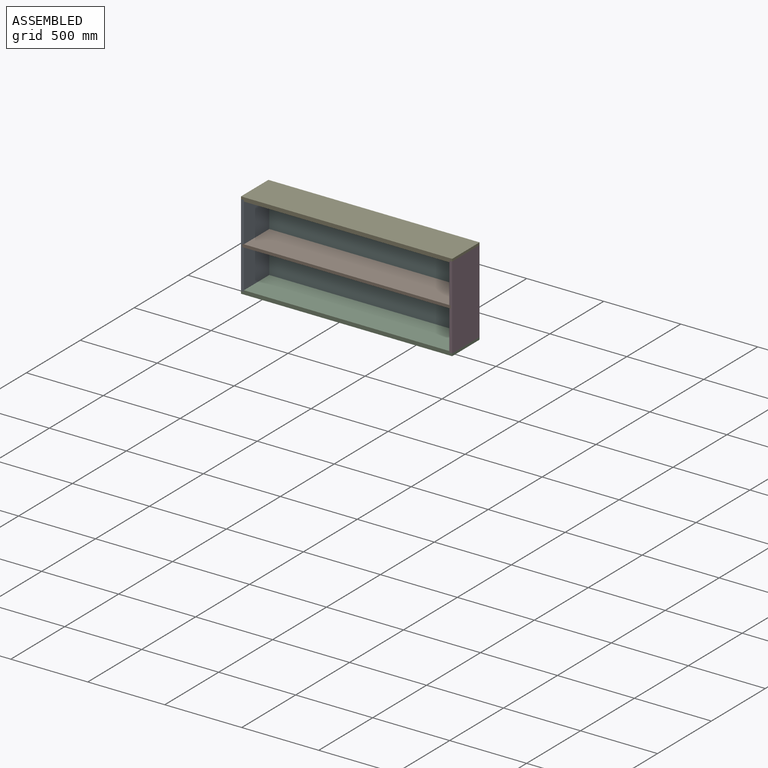
[diagram: assembled view]
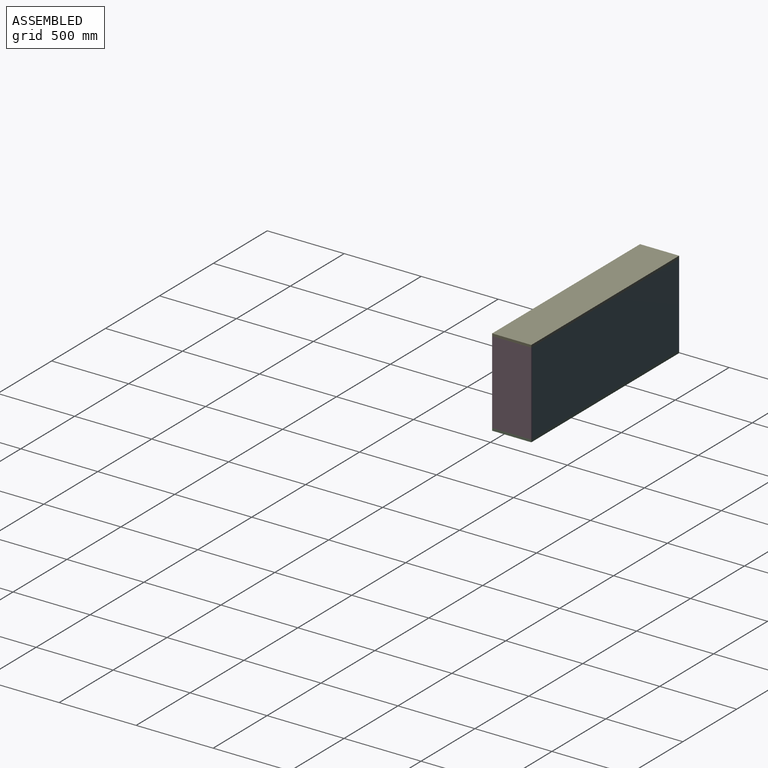
[diagram: assembled view, second angle]
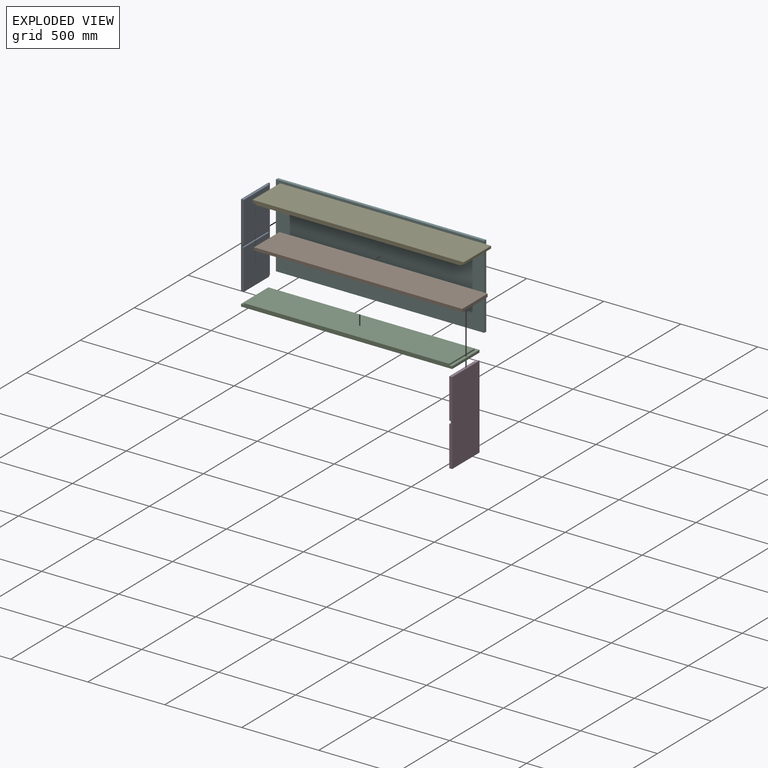
[diagram: exploded view]
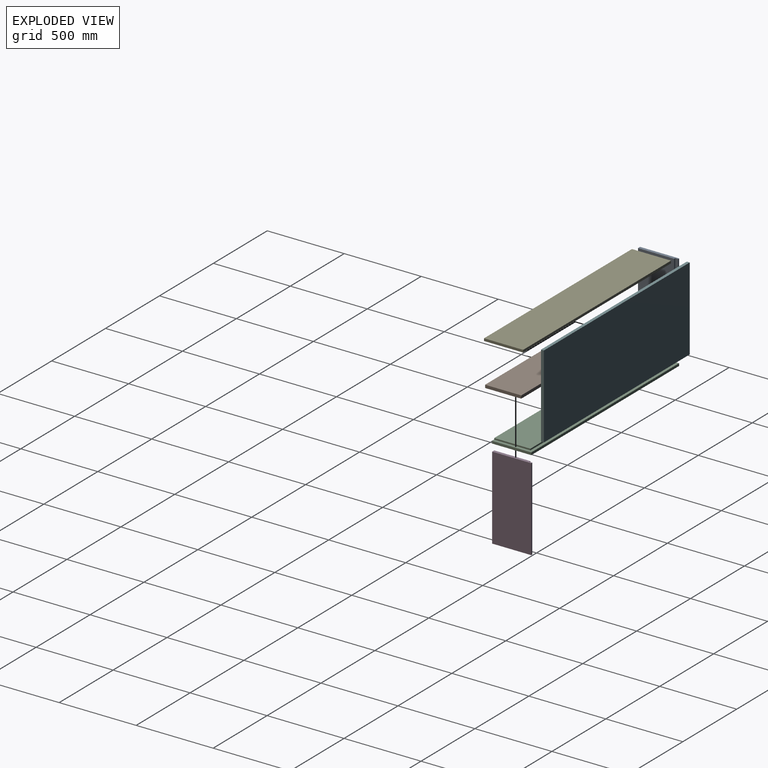
[diagram: exploded view, second angle]
ASSEMBLY  parts=6 mates=5
PART A: 12 faces, bbox 19.1x254x539.8 mm
  f0: plane 254x19.05mm, normal (0,0,-1), area 4657.2mm2, adj f1,f5,f6,f8,f9,f11
  f1: plane 539.75x9.53mm, normal (0,1,0), area 5141.1mm2, adj f0,f2,f8,f9
  f2: plane 254x19.05mm, normal (0,0,1), area 4657.2mm2, adj f1,f6,f7,f8,f9,f10
  f3: plane 234.95x9.53mm, normal (0,0,1), area 2237.9mm2, adj f5,f6,f9,f11
  f4: plane 234.95x9.53mm, normal (0,0,-1), area 2237.9mm2, adj f6,f7,f9,f10
  f5: plane 260.35x234.95mm, normal (-1,0,0), area 61169.2mm2, adj f0,f3,f6,f11
  f6: plane 539.75x19.05mm, normal (0,-1,0), area 10100.8mm2, adj f0,f2,f3,f4,f5,f7,f8,f9
  f7: plane 260.35x234.95mm, normal (-1,0,0), area 61169.2mm2, adj f2,f4,f6,f10
  f8: plane 539.75x254mm, normal (1,0,0), area 137096.5mm2, adj f0,f1,f2,f6
  f9: plane 539.75x254mm, normal (-1,0,0), area 14758mm2, adj f0,f1,f2,f3,f4,f6,f10,f11
  f10: plane 260.35x9.53mm, normal (0,1,0), area 2479.8mm2, adj f2,f4,f7,f9
  f11: plane 260.35x9.53mm, normal (0,1,0), area 2479.8mm2, adj f0,f3,f5,f9
PART B: 6 faces, bbox 1352.6x235x19.1 mm
  f0: plane 1352.55x19.05mm, normal (0,1,0), area 25766.1mm2, adj f1,f2,f3,f4
  f1: plane 1352.55x234.95mm, normal (0,0,-1), area 317781.6mm2, adj f0,f2,f4,f5
  f2: plane 234.95x19.05mm, normal (1,0,0), area 4475.8mm2, adj f0,f1,f3,f5
  f3: plane 1352.55x234.95mm, normal (0,0,1), area 317781.6mm2, adj f0,f2,f4,f5
  f4: plane 234.95x19.05mm, normal (-1,0,0), area 4475.8mm2, adj f0,f1,f3,f5
  f5: plane 1352.55x19.05mm, normal (0,-1,0), area 25766.1mm2, adj f1,f2,f3,f4
PART C: 10 faces, bbox 1371.6x254x25.4 mm
  f0: plane 1371.6x15.88mm, normal (0,1,0), area 21774.1mm2, adj f4,f5,f7,f8
  f1: plane 1333.5x234.95mm, normal (0,0,-1), area 313305.8mm2, adj f2,f3,f6,f9
  f2: plane 234.95x9.53mm, normal (1,0,0), area 2237.9mm2, adj f1,f6,f8,f9
  f3: plane 234.95x9.53mm, normal (-1,0,0), area 2237.9mm2, adj f1,f6,f8,f9
  f4: plane 254x15.88mm, normal (1,0,0), area 4032.2mm2, adj f0,f6,f7,f8
  f5: plane 254x15.88mm, normal (-1,0,0), area 4032.2mm2, adj f0,f6,f7,f8
  f6: plane 1371.6x25.4mm, normal (0,-1,0), area 34475.7mm2, adj f1,f2,f3,f4,f5,f7,f8
  f7: plane 1371.6x254mm, normal (0,0,1), area 348386.4mm2, adj f0,f4,f5,f6
  f8: plane 1371.6x254mm, normal (0,0,-1), area 35080.6mm2, adj f0,f2,f3,f4,f5,f6,f9
  f9: plane 1333.5x9.53mm, normal (0,1,0), area 12701.6mm2, adj f1,f2,f3,f8
PART D: same geometry as A
PART E: same geometry as C
PART F: 6 faces, bbox 1352.6x19.1x539.8 mm
  f0: plane 1352.55x19.05mm, normal (0,0,1), area 25766.1mm2, adj f1,f3,f4,f5
  f1: plane 539.75x19.05mm, normal (1,0,0), area 10282.2mm2, adj f0,f2,f4,f5
  f2: plane 1352.55x19.05mm, normal (0,0,-1), area 25766.1mm2, adj f1,f3,f4,f5
  f3: plane 539.75x19.05mm, normal (-1,0,0), area 10282.2mm2, adj f0,f2,f4,f5
  f4: plane 1352.55x539.75mm, normal (0,1,0), area 730038.9mm2, adj f0,f1,f2,f3
  f5: plane 1352.55x539.75mm, normal (0,-1,0), area 730038.9mm2, adj f0,f1,f2,f3
PLACE A rot(axis=(0,1,0),180deg) t=(1393.23,-105.8,-208.22)mm
PLACE B t=(1393.23,-105.8,-195.52)mm
PLACE C rot(axis=(0,1,0),180deg) t=(1393.23,-105.8,-208.22)mm fixed
PLACE D t=(1393.23,-105.8,-195.52)mm
PLACE E t=(1393.23,-105.8,-195.52)mm
PLACE F t=(1393.23,-105.8,-195.52)mm
MATE fastened B.f4 <-> A.f9  axis (-1,0,0) through (716.96,-232.8,-201.87)mm
MATE fastened F.f5 <-> D.f10  axis (0,-1,0) through (2069.51,2.15,68)mm
MATE fastened A.f2 <-> C.f8  axis (0,0,-1) through (726.48,-232.8,-471.75)mm
MATE fastened A.f5 <-> E.f3  axis (1,0,0) through (726.48,-232.8,68)mm
MATE fastened C.f8 <-> D.f0  axis (0,0,1) through (2059.98,-232.8,-471.75)mm
